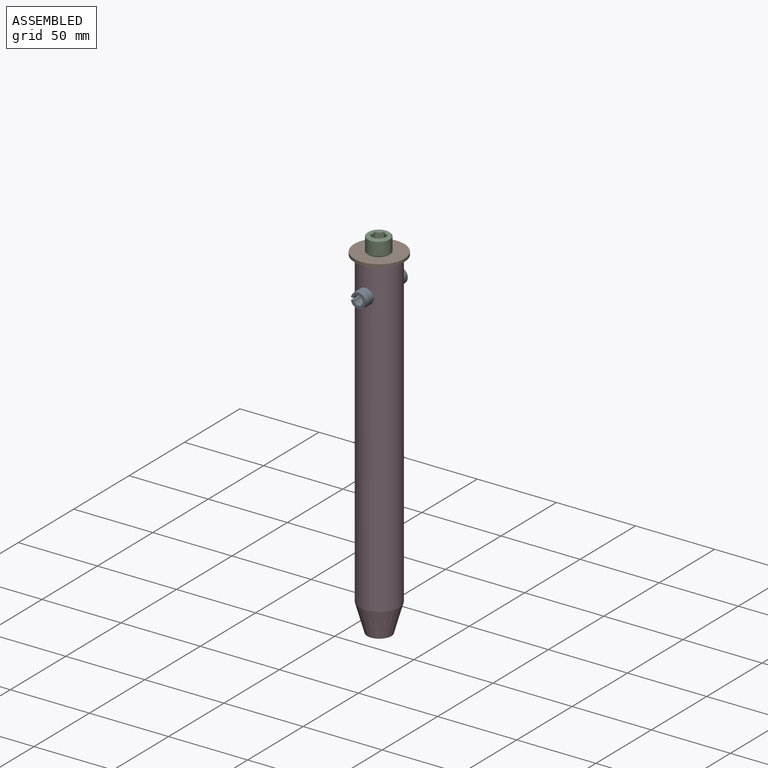
[diagram: assembled view]
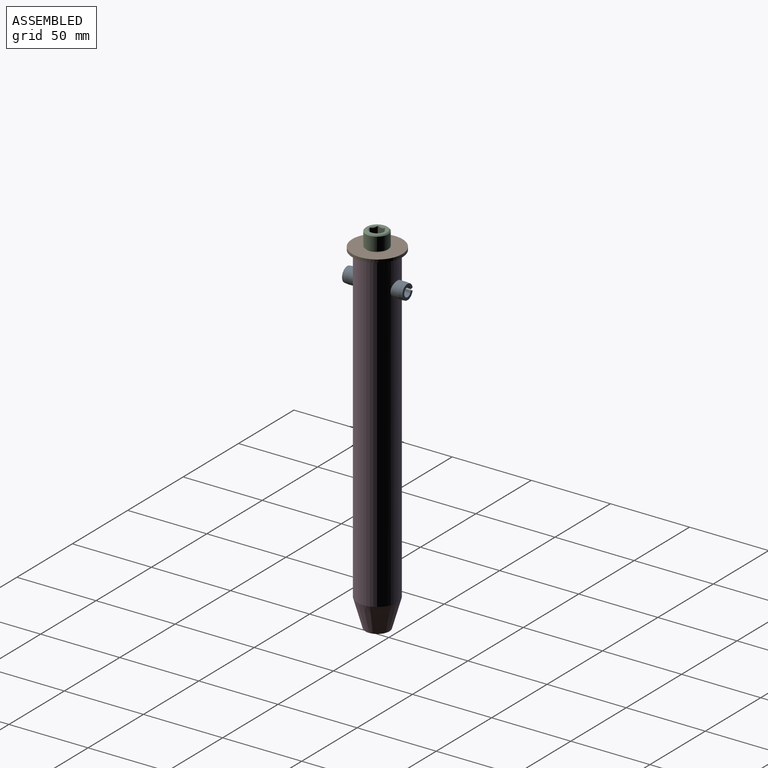
[diagram: assembled view, second angle]
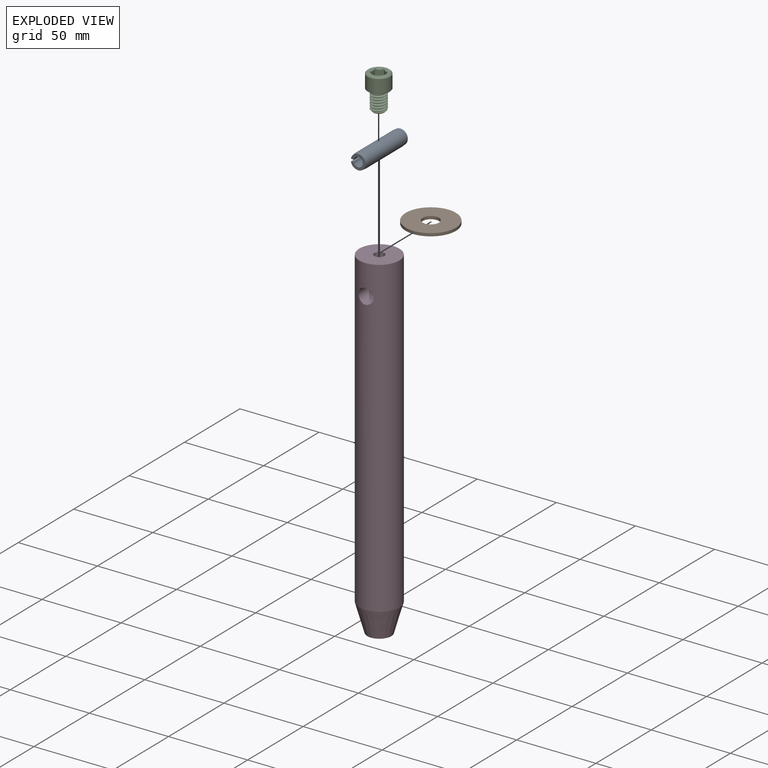
[diagram: exploded view]
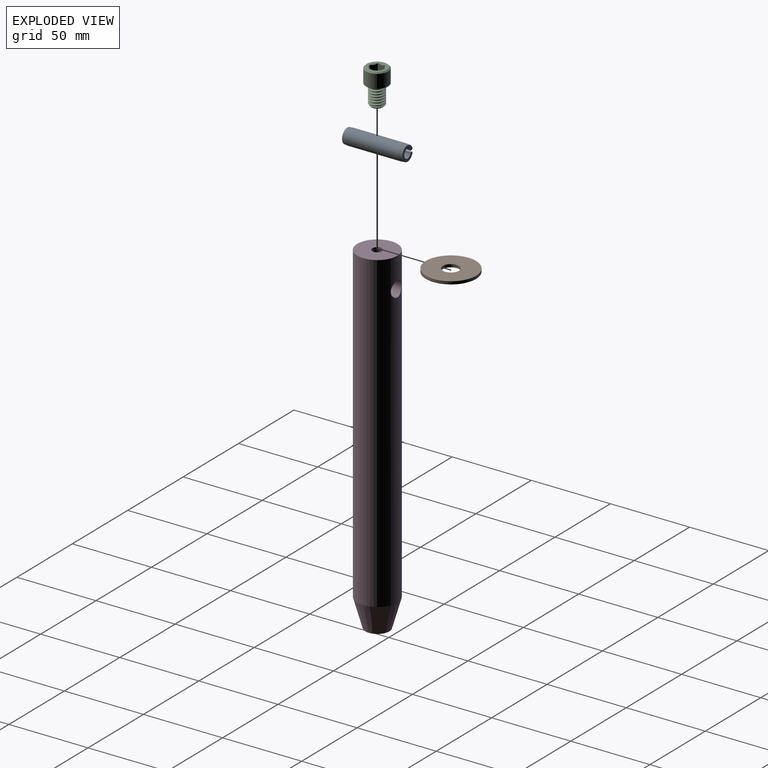
[diagram: exploded view, second angle]
ASSEMBLY  parts=4 mates=3
PART A: 8 faces, bbox 9.7x9.8x38.1 mm
  f0: cylinder r=2.93mm len=38.1mm, axis (0,0,-1), area 663.3mm2, adj f1,f3,f4,f5
  f1: plane 38.1x1.93mm, normal (-0.17,0.98,0), area 74mm2, adj f0,f2,f4,f5,f6,f7
  f2: cylinder r=4.89mm len=33.27mm, axis (0,0,-1), area 965.4mm2, adj f1,f3,f6,f7
  f3: plane 38.1x1.93mm, normal (-0.17,-0.98,0), area 74mm2, adj f0,f2,f4,f5,f6,f7
  f4: plane 9.35x9.28mm, normal (0,0,1), area 39.3mm2, adj f0,f1,f3,f7
  f5: plane 9.35x9.28mm, normal (0,0,-1), area 39.3mm2, adj f0,f1,f3,f6
  f6: cone r=4.89mm half-angle=5.1deg, axis (0,0,1), area 68.7mm2, adj f1,f2,f3,f5
  f7: cone r=4.67mm half-angle=5.1deg, axis (0,0,-1), area 68.7mm2, adj f1,f2,f3,f4
PART B: 4 faces, bbox 1.8x31.8x31.8 mm
  f0: plane 31.75x31.75mm, normal (1,0,0), area 708.2mm2, adj f2,f3
  f1: plane 31.75x31.75mm, normal (-1,0,0), area 708.2mm2, adj f2,f3
  f2: cylinder r=15.88mm len=31.75mm, axis (-1,0,0), area 182.4mm2, adj f0,f1
  f3: cylinder r=5.16mm len=10.31mm, axis (-1,0,0), area 59.2mm2, adj f0,f1
PART C: 24 faces, bbox 16x16x24.6 mm
  f0: cylinder r=4.76mm len=11.51mm, axis (0,0,1), area 8mm2, adj f2,f4,f5,f6
  f1: plane 7.14x7.14mm, normal (0,0,1), area 40.1mm2, adj f2
  f2: cone r=3.57mm half-angle=45deg, axis (0,0,-1), area 24.1mm2, adj f0,f1,f3,f4,f5
  f3: cylinder r=3.73mm len=12.54mm, axis (0,0,-1), area 48.7mm2, adj f2,f4,f5,f6
  f4: bspline ~13.56x11mm, area 240.9mm2, adj f0,f2,f3,f6
  f5: bspline ~14.09x11mm, area 238.5mm2, adj f0,f2,f3,f6
  f6: plane 14.2x14.2mm, normal (0,0,1), area 87.6mm2, adj f0,f3,f4,f5,f23
  f7: cylinder r=7.14mm len=14.29mm, axis (0,0,1), area 379.4mm2, adj f22,f23
  f8: plane 12.86x12.86mm, normal (0,0,-1), area 63.9mm2, adj f9,f10,f11,f12,f13,f14,f22
  f9: cone r=4.58mm half-angle=45deg, axis (0,0,-1), area 0mm2, adj f8,f16
  f10: cone r=4.58mm half-angle=45deg, axis (0,0,-1), area 0mm2, adj f8,f17
  f11: cone r=4.58mm half-angle=45deg, axis (0,0,-1), area 0mm2, adj f8,f18
  f12: cone r=4.58mm half-angle=45deg, axis (0,0,-1), area 0mm2, adj f8,f19
  f13: cone r=4.58mm half-angle=45deg, axis (0,0,-1), area 0mm2, adj f8,f20
  f14: cone r=4.58mm half-angle=45deg, axis (0,0,-1), area 0mm2, adj f8,f21
  f15: plane 9.17x7.94mm, normal (0,0,-1), area 54.6mm2, adj f16,f17,f18,f19,f20,f21
  f16: plane 7.69x5.71mm, normal (-0.5,-0.87,0), area 25.4mm2, adj f9,f15,f17,f21
  f17: plane 7.69x6.33mm, normal (-1,0,0), area 25.4mm2, adj f10,f15,f16,f18
  f18: plane 7.69x5.71mm, normal (-0.5,0.87,0), area 25.4mm2, adj f11,f15,f17,f19
  f19: plane 7.69x5.71mm, normal (0.5,0.87,0), area 25.4mm2, adj f12,f15,f18,f20
  f20: plane 7.69x6.33mm, normal (1,0,0), area 25.4mm2, adj f13,f15,f19,f21
  f21: plane 7.69x5.71mm, normal (0.5,-0.87,0), area 25.4mm2, adj f14,f15,f16,f20
  f22: cone r=6.43mm half-angle=45deg, axis (0,0,1), area 43.1mm2, adj f7,f8
  f23: cone r=7.14mm half-angle=45deg, axis (0,0,-1), area 22.1mm2, adj f6,f7
PART D: 7 faces, bbox 25.4x25.4x215.9 mm
  f0: cylinder r=12.7mm len=198.12mm, axis (0,0,-1), area 15664.3mm2, adj f1,f3,f4
  f1: plane 25.4x25.4mm, normal (0,0,1), area 475mm2, adj f0,f5
  f2: plane 15.24x15.24mm, normal (0,0,-1), area 182.4mm2, adj f3
  f3: cone r=12.7mm half-angle=15.9deg, axis (0,0,1), area 1180.4mm2, adj f0,f2
  f4: cylinder r=4.76mm len=25.4mm, axis (0,1,0), area 732.6mm2, adj f0
  f5: cylinder r=3.17mm len=12.7mm, axis (0,0,1), area 253.4mm2, adj f1,f6
  f6: plane 6.35x6.35mm, normal (0,0,1), area 31.7mm2, adj f5
PLACE A rot(axis=(1,0,0),90deg) t=(-30.73,41.3,169.52)mm
PLACE B rot(axis=(0.71,0,-0.71),180deg) t=(-30.73,41.3,190.4)mm
PLACE C rot(axis=(1,0,0),180deg) t=(-30.86,40.99,177.7)mm
PLACE D t=(-30.73,41.3,-27.33)mm
MATE fastened B.f2 <-> D.f0  axis (0,0,-1) through (-30.73,41.3,188.57)mm
MATE fastened A.f0 <-> D.f4  axis (0,1,0) through (-30.73,41.3,169.52)mm
MATE fastened C.f6 <-> B.f2  axis (0,0,-1) through (-30.73,41.3,190.4)mm
